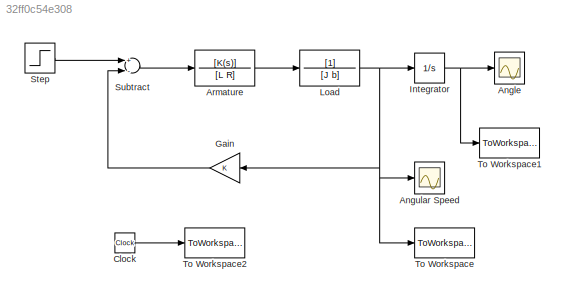
MODEL slx_32ff0c54e308
KIND model
BLOCK [Scope] Angle 
  DataFormat = StructureWithTime
  Floating = off
  NumInputPorts = 1
  Ports = [1]
  SampleTime = 0
  ShowLegends = off
BLOCK [Scope] Angular Speed 
  DataFormat = StructureWithTime
  Floating = off
  NumInputPorts = 1
  Ports = [1]
  SampleTime = 0
  SaveName = ScopeData1
  ShowLegends = off
BLOCK [TransferFcn] Armature 
  Denominator = [L R]
  Numerator = [K(s)]
BLOCK [Clock] Clock
BLOCK [Gain] Gain
  Gain = K
  OutDataTypeStr = Inherit: Inherit via internal rule
  ParamDataTypeStr = Inherit: Inherit via internal rule
  SaturateOnIntegerOverflow = off
BLOCK [Integrator] Integrator
  Ports = [1, 1]
BLOCK [TransferFcn] Load 
  Denominator = [J b]
BLOCK [Step] Step
  SampleTime = 0
BLOCK [Sum] Subtract
  InputSameDT = off
  Inputs = +-
  OutDataTypeStr = Inherit: Inherit via internal rule
  Ports = [2, 1]
  SaturateOnIntegerOverflow = off
BLOCK [ToWorkspace] To Workspace
  MaxDataPoints = inf
  Ports = [1]
  SampleTime = -1
  SaveFormat = Timeseries
  VariableName = omega
BLOCK [ToWorkspace] To Workspace1
  MaxDataPoints = inf
  Ports = [1]
  SampleTime = -1
  SaveFormat = Timeseries
  VariableName = theta
BLOCK [ToWorkspace] To Workspace2
  MaxDataPoints = inf
  Ports = [1]
  SampleTime = -1
  SaveFormat = Timeseries
  VariableName = t
LINE Armature :1 -> Load :1
LINE Clock:1 -> To Workspace2:1
LINE Gain:1 -> Subtract:2
NET Integrator:1 -> Angle :1, To Workspace1:1
NET Load :1 -> Angular Speed :1, Gain:1, Integrator:1, To Workspace:1
LINE Step:1 -> Subtract:1
LINE Subtract:1 -> Armature :1
note: NET lines group one-source signal fan-out (src -> all destinations, sorted); 1:1 wires keep LINE
